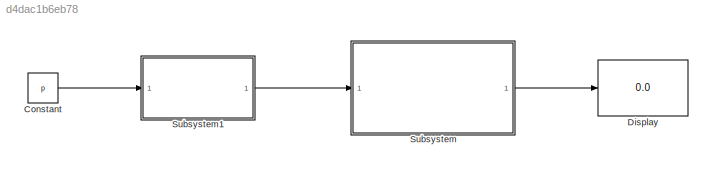
MODEL slx_d4dac1b6eb78
KIND model
CONFIG AbsTol = auto
CONFIG EnableMultiTasking = off
CONFIG FixedStep = auto
CONFIG MaxStep = auto
CONFIG MinStep = auto
CONFIG RelTol = 1e-3
CONFIG SampleTimeConstraint = Unconstrained
CONFIG SolverName = VariableStepAuto
CONFIG StartTime = 0.0
CONFIG StopTime = 10.0
BLOCK [Constant] Constant
  Value = p
BLOCK [Display] Display
  Decimation = 1
  Ports = [1]
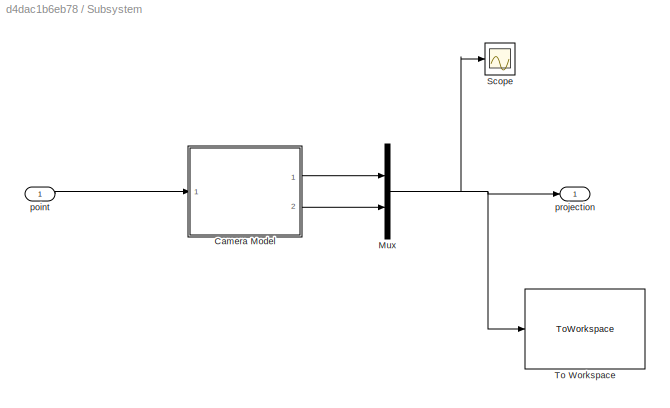
BLOCK [SubSystem] Subsystem
  Ports = [1, 1]
  RequestExecContextInheritance = off
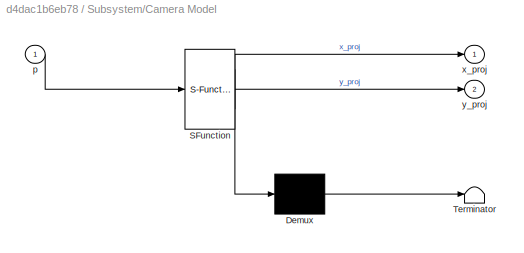
BLOCK [SubSystem] Subsystem/Camera Model
  ErrorFcn = Stateflow.Translate.translate
  PermitHierarchicalResolution = ExplicitOnly
  Ports = [1, 2]
  RequestExecContextInheritance = off
  SFBlockType = MATLAB Function
  TreatAsAtomicUnit = on
BLOCK [Demux] Subsystem/Camera Model/ Demux 
  Outputs = 1
  Ports = [1, 1]
BLOCK [S-Function] Subsystem/Camera Model/ SFunction 
  EnableBusSupport = on
  FunctionName = sf_sfun
  Parameters = ang,d,f
  PortCounts = [1 3]
  Ports = [1, 3]
  SFcnIsStateOwnerBlock = off
  SFunctionDeploymentMode = off
  Tag = Stateflow S-Function 2
BLOCK [Terminator] Subsystem/Camera Model/ Terminator 
BLOCK [Inport] Subsystem/Camera Model/p
BLOCK [Outport] Subsystem/Camera Model/x_proj
BLOCK [Outport] Subsystem/Camera Model/y_proj
  Port = 2
BLOCK [Mux] Subsystem/Mux
  DisplayOption = bar
  Inputs = 2
  Ports = [2, 1]
BLOCK [Scope] Subsystem/Scope
  Floating = off
  NumInputPorts = 1
  Ports = [1]
  ScopeSpecificationString = Simulink.scopes.TimeScopeBlockCfg('CurrentConfiguration', extmgr.ConfigurationSet(extmgr.Configuration('Core','General UI',true),extmgr.Configuration('Core','Source UI',true),extmgr.Configuration('Sources','WiredSimulink',true),extmgr.Configuration('Visuals','Time Domain',true,'SerializedDisplays',{struct('MinYLimReal','-0.04072','MaxYLimReal','0.04022','YLabelReal','','MinYLimMag','0.00000','MaxY...<+1391ch>
BLOCK [ToWorkspace] Subsystem/To Workspace
  FixptAsFi = on
  MaxDataPoints = inf
  Ports = [1]
  SampleTime = 0.1
  VariableName = moving_projection
BLOCK [Inport] Subsystem/point
BLOCK [Outport] Subsystem/projection
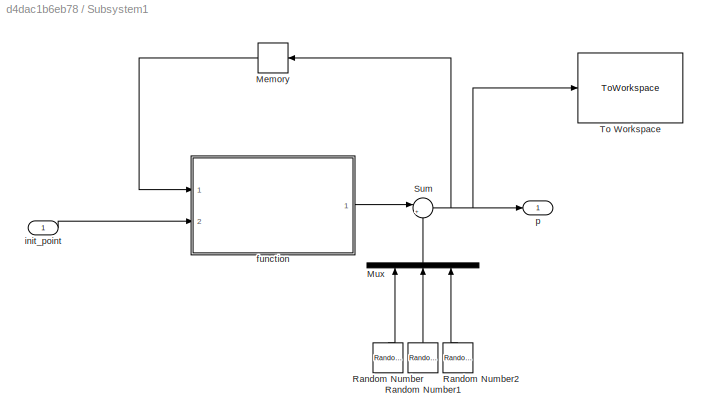
BLOCK [SubSystem] Subsystem1
  Ports = [1, 1]
  RequestExecContextInheritance = off
BLOCK [Memory] Subsystem1/Memory
  InitialCondition = zeros(3, 1)
  NameLocation = top
BLOCK [Mux] Subsystem1/Mux
  DisplayOption = bar
  Inputs = 3
  NameLocation = right
  Ports = [3, 1]
BLOCK [RandomNumber] Subsystem1/Random Number
  NameLocation = right
  SampleTime = 0.3
  Variance = 0.002
BLOCK [RandomNumber] Subsystem1/Random Number1
  NameLocation = right
  SampleTime = 0.3
  Seed = 2
  Variance = 0.002
BLOCK [RandomNumber] Subsystem1/Random Number2
  NameLocation = right
  SampleTime = 0.3
  Seed = 5
  Variance = 0.002
BLOCK [Sum] Subsystem1/Sum
  Inputs = |++
  Ports = [2, 1]
BLOCK [ToWorkspace] Subsystem1/To Workspace
  FixptAsFi = on
  MaxDataPoints = inf
  Ports = [1]
  SampleTime = -1
  VariableName = moving_point
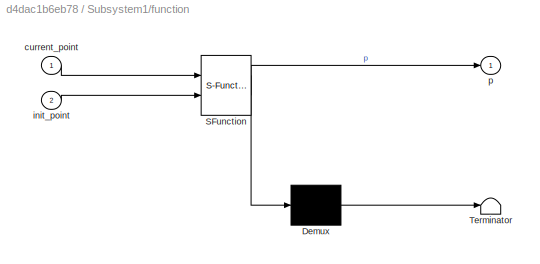
BLOCK [SubSystem] Subsystem1/function
  ErrorFcn = Stateflow.Translate.translate
  PermitHierarchicalResolution = ExplicitOnly
  Ports = [2, 1]
  RequestExecContextInheritance = off
  SFBlockType = MATLAB Function
  TreatAsAtomicUnit = on
BLOCK [Demux] Subsystem1/function/ Demux 
  Outputs = 1
  Ports = [1, 1]
BLOCK [S-Function] Subsystem1/function/ SFunction 
  EnableBusSupport = on
  FunctionName = sf_sfun
  PortCounts = [2 2]
  Ports = [2, 2]
  SFcnIsStateOwnerBlock = off
  SFunctionDeploymentMode = off
  Tag = Stateflow S-Function 1
BLOCK [Terminator] Subsystem1/function/ Terminator 
BLOCK [Inport] Subsystem1/function/current_point
BLOCK [Inport] Subsystem1/function/init_point
  Port = 2
BLOCK [Outport] Subsystem1/function/p
BLOCK [Inport] Subsystem1/init_point
BLOCK [Outport] Subsystem1/p
LINE Constant:1 -> Subsystem1:1
LINE Subsystem/Camera Model:1 -> Subsystem/Mux:1
LINE Subsystem/Camera Model:2 -> Subsystem/Mux:2
NET Subsystem/Mux:1 -> Subsystem/Scope:1, Subsystem/To Workspace:1, Subsystem/projection:1
LINE Subsystem/point:1 -> Subsystem/Camera Model:1
LINE Subsystem1/Memory:1 -> Subsystem1/function:1
LINE Subsystem1/Mux:1 -> Subsystem1/Sum:2
LINE Subsystem1/Random Number1:1 -> Subsystem1/Mux:2
LINE Subsystem1/Random Number2:1 -> Subsystem1/Mux:3
LINE Subsystem1/Random Number:1 -> Subsystem1/Mux:1
NET Subsystem1/Sum:1 -> Subsystem1/Memory:1, Subsystem1/To Workspace:1, Subsystem1/p:1
LINE Subsystem1/function:1 -> Subsystem1/Sum:1
LINE Subsystem1/init_point:1 -> Subsystem1/function:2
LINE Subsystem1:1 -> Subsystem:1
LINE Subsystem:1 -> Display:1
note: NET lines group one-source signal fan-out (src -> all destinations, sorted); 1:1 wires keep LINE
CHART Subsystem1/function states=1 transitions=1
  STATE_LABEL 'eML_blk_kernel()'
  STATE_LABEL 'SCRIPT:\nfunction p = fcn(current_point, init_point)\n\nif current_point == zeros(3,1)\n    p = init_point;\nelse\n    p = current_point;\nend'
CHART Subsystem/Camera Model states=1 transitions=1
  STATE_LABEL 'eML_blk_kernel()'
  STATE_LABEL "SCRIPT:\nfunction [x_proj,y_proj] = proj(p, ang, d, f)\n\nTwc = [rot(ang(1),ang(2),ang(3))   d;\n                zeros(1,3)         1];\n\np_cam = Twc^-1 * [p;1];   % point's position in camera frame\n\nP = diag([f,f,1]) * [eye(3), zeros(3,1)]; % camera projection matrix\n\np_tilde = P*p_cam;       \nx_proj = -p_tilde(1)/p(3);\ny_proj = p_tilde(2)/p(3);\n\nend\n"
CHART  states=0 transitions=0
CHART  states=0 transitions=0
